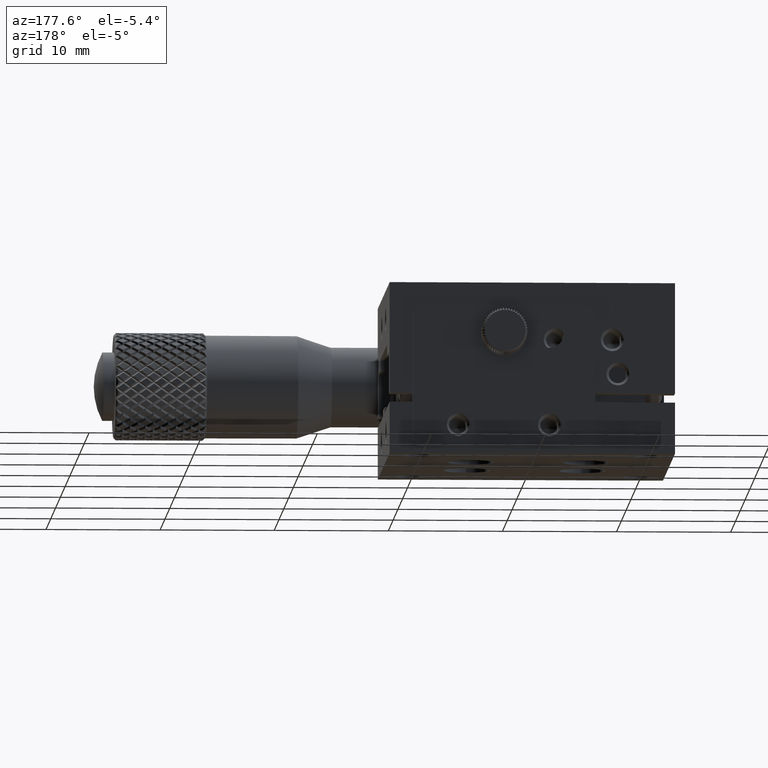
[diagram: clean part render]
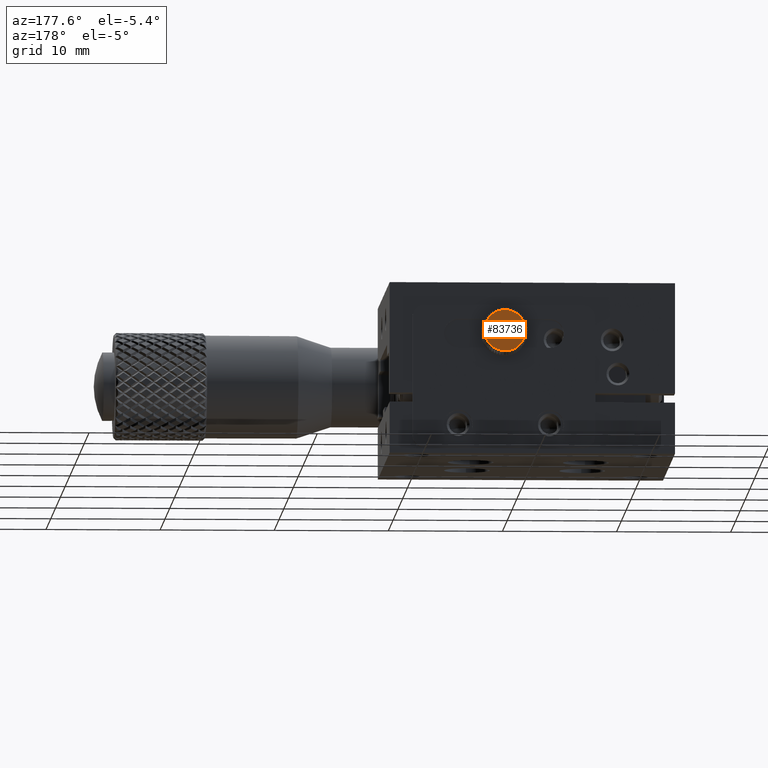
[diagram: same view with one face highlighted and labeled with its STEP entity id]
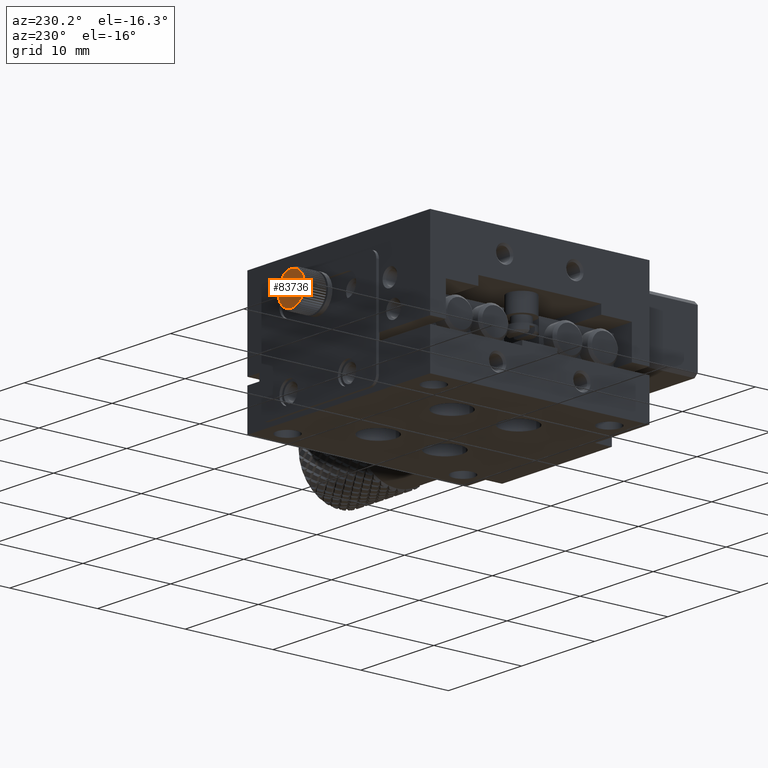
[diagram: same view with one face highlighted and labeled with its STEP entity id]
A machine part, auxiliary view. The second image highlights one B-rep face of the part: STEP entity #83736.
A second angle (auxiliary view) of the same face is appended — the face is thin or edge-on in the first view.
In plain terms, the highlighted planar face has unit normal (0, -1, 0).
Its self-contained STEP definition (entity closure, byte-faithful):
#442 = EDGE_CURVE ( 'NONE', #6730, #43148, #26499, .T. ) ;
#566 = CARTESIAN_POINT ( 'NONE',  ( 4.324138111140314322, 15.80000000000000071, 10.61302293515085893 ) ) ;
#810 = AXIS2_PLACEMENT_3D ( 'NONE', #1573, #66263, #30388 ) ;
#1055 = CARTESIAN_POINT ( 'NONE',  ( 4.295807051281545164, 15.80000000000000071, 10.83728636624858233 ) ) ;
#1087 = ORIENTED_EDGE ( 'NONE', *, *, #35388, .F. ) ;
#1355 = ORIENTED_EDGE ( 'NONE', *, *, #35500, .F. ) ;
#1573 = CARTESIAN_POINT ( 'NONE',  ( 2.527690000000000659, 15.79999999996744009, 10.49999999999999822 ) ) ;
#1682 = PLANE ( 'NONE',  #4571 ) ;
#1814 = AXIS2_PLACEMENT_3D ( 'NONE', #38306, #67074, #2387 ) ;
#2387 = DIRECTION ( 'NONE',  ( -1.000000000000000000, 0.000000000000000000, 0.000000000000000000 ) ) ;
#2611 = DIRECTION ( 'NONE',  ( -1.000000000000000000, 0.000000000000000000, 0.000000000000000000 ) ) ;
#2615 = CARTESIAN_POINT ( 'NONE',  ( 2.527690000000000659, 15.79999999996744009, 10.49999999999999822 ) ) ;
#2675 = EDGE_CURVE ( 'NONE', #31469, #46198, #42476, .T. ) ;
#3097 = AXIS2_PLACEMENT_3D ( 'NONE', #67372, #66922, #65524 ) ;
#3815 = CIRCLE ( 'NONE', #53558, 1.799999999969366105 ) ;
#3827 = AXIS2_PLACEMENT_3D ( 'NONE', #8591, #29819, #72772 ) ;
#4057 = CARTESIAN_POINT ( 'NONE',  ( 2.527690000000000659, 15.79999999996744009, 10.49999999999999822 ) ) ;
#4221 = DIRECTION ( 'NONE',  ( 0.000000000000000000, -1.000000000000000000, 0.000000000000000000 ) ) ;
#4408 = EDGE_CURVE ( 'NONE', #87522, #68984, #71162, .T. ) ;
#4524 = CIRCLE ( 'NONE', #40674, 1.799999999969366105 ) ;
#4571 = AXIS2_PLACEMENT_3D ( 'NONE', #51275, #30499, #59744 ) ;
#4771 = DIRECTION ( 'NONE',  ( -1.000000000000000000, 0.000000000000000000, 0.000000000000000000 ) ) ;
#4784 = DIRECTION ( 'NONE',  ( 0.000000000000000000, -1.000000000000000000, 0.000000000000000000 ) ) ;
#4812 = CARTESIAN_POINT ( 'NONE',  ( 4.295807051281552269, 15.80000000000000071, 10.16271363375145320 ) ) ;
#5557 = DIRECTION ( 'NONE',  ( -1.000000000000000000, 0.000000000000000000, 0.000000000000000000 ) ) ;
#6017 = CIRCLE ( 'NONE', #79911, 1.799999999969366105 ) ;
#6330 = AXIS2_PLACEMENT_3D ( 'NONE', #67523, #51985, #65686 ) ;
#6730 = VERTEX_POINT ( 'NONE', #85150 ) ;
#7063 = CARTESIAN_POINT ( 'NONE',  ( 3.394846613368343036, 15.80000000000000071, 8.922647975947896271 ) ) ;
#7100 = CARTESIAN_POINT ( 'NONE',  ( 2.527690000000000659, 15.79999999996744009, 10.49999999999999822 ) ) ;
#7373 = CARTESIAN_POINT ( 'NONE',  ( 0.7595729487184510464, 15.80000000000000071, 10.83728636624855746 ) ) ;
#7750 = DIRECTION ( 'NONE',  ( -1.000000000000000000, 0.000000000000000000, 0.000000000000000000 ) ) ;
#7848 = DIRECTION ( 'NONE',  ( 0.000000000000000000, -1.000000000000000000, 0.000000000000000000 ) ) ;
#7912 = EDGE_CURVE ( 'NONE', #11252, #92709, #36679, .T. ) ;
#8264 = DIRECTION ( 'NONE',  ( 0.000000000000000000, -1.000000000000000000, 0.000000000000000000 ) ) ;
#8289 = VERTEX_POINT ( 'NONE', #87975 ) ;
#8505 = AXIS2_PLACEMENT_3D ( 'NONE', #70923, #55844, #54918 ) ;
#8591 = CARTESIAN_POINT ( 'NONE',  ( 2.527690000000000659, 15.79999999996744009, 10.49999999999999822 ) ) ;
#8686 = EDGE_CURVE ( 'NONE', #72653, #31469, #17084, .T. ) ;
#8861 = ORIENTED_EDGE ( 'NONE', *, *, #37677, .F. ) ;
#8885 = AXIS2_PLACEMENT_3D ( 'NONE', #4057, #27187, #21051 ) ;
#8968 = ORIENTED_EDGE ( 'NONE', *, *, #17415, .F. ) ;
#9057 = CARTESIAN_POINT ( 'NONE',  ( 2.527690000000000659, 15.79999999996744009, 10.49999999999999822 ) ) ;
#9376 = CARTESIAN_POINT ( 'NONE',  ( 2.527690000000000659, 15.79999999996744009, 10.49999999999999822 ) ) ;
#9404 = EDGE_CURVE ( 'NONE', #20054, #44593, #45785, .T. ) ;
#9475 = DIRECTION ( 'NONE',  ( 0.000000000000000000, -1.000000000000000000, 0.000000000000000000 ) ) ;
#9642 = VERTEX_POINT ( 'NONE', #85440 ) ;
#9932 = CARTESIAN_POINT ( 'NONE',  ( 1.140766163027188584, 15.80000000000000071, 9.352636818471877334 ) ) ;
#10581 = CIRCLE ( 'NONE', #85897, 1.799999999969366105 ) ;
#10664 = VERTEX_POINT ( 'NONE', #9932 ) ;
#10976 = DIRECTION ( 'NONE',  ( 0.000000000000000000, -1.000000000000000000, 0.000000000000000000 ) ) ;
#11252 = VERTEX_POINT ( 'NONE', #33144 ) ;
#11261 = DIRECTION ( 'NONE',  ( 0.000000000000000000, -1.000000000000000000, 0.000000000000000000 ) ) ;
#11893 = VERTEX_POINT ( 'NONE', #21112 ) ;
#12218 = DIRECTION ( 'NONE',  ( -1.000000000000000000, 0.000000000000000000, 0.000000000000000000 ) ) ;
#12308 = VERTEX_POINT ( 'NONE', #39244 ) ;
#12545 = AXIS2_PLACEMENT_3D ( 'NONE', #64626, #50464, #72175 ) ;
#12773 = EDGE_CURVE ( 'NONE', #79172, #8289, #33822, .T. ) ;
#12795 = CARTESIAN_POINT ( 'NONE',  ( 1.007899734122243540, 15.80000000000000071, 9.535511769054211939 ) ) ;
#12861 = CARTESIAN_POINT ( 'NONE',  ( 1.295505209349338882, 15.80000000000000071, 9.187856470663783526 ) ) ;
#12882 = CARTESIAN_POINT ( 'NONE',  ( 2.527690000000000659, 15.79999999996744009, 10.49999999999999822 ) ) ;
#13393 = CARTESIAN_POINT ( 'NONE',  ( 2.527690000000000659, 15.79999999996744009, 10.49999999999999822 ) ) ;
#13454 = AXIS2_PLACEMENT_3D ( 'NONE', #12882, #40741, #91622 ) ;
#13511 = CIRCLE ( 'NONE', #73841, 1.799999999969366105 ) ;
#13869 = CARTESIAN_POINT ( 'NONE',  ( 2.527690000000000659, 15.79999999996744009, 10.49999999999999822 ) ) ;
#13872 = CARTESIAN_POINT ( 'NONE',  ( 2.527690000000000659, 15.79999999996744009, 10.49999999999999822 ) ) ;
#14094 = AXIS2_PLACEMENT_3D ( 'NONE', #58674, #81304, #29408 ) ;
#14358 = EDGE_CURVE ( 'NONE', #49681, #18912, #91032, .T. ) ;
#14466 = DIRECTION ( 'NONE',  ( -1.000000000000000000, 0.000000000000000000, 0.000000000000000000 ) ) ;
#14625 = EDGE_CURVE ( 'NONE', #92709, #6730, #39972, .T. ) ;
#14697 = CARTESIAN_POINT ( 'NONE',  ( 2.527690000000000659, 15.79999999996744009, 10.49999999999999822 ) ) ;
#14733 = DIRECTION ( 'NONE',  ( -1.000000000000000000, 0.000000000000000000, 0.000000000000000000 ) ) ;
#15202 = CIRCLE ( 'NONE', #3097, 1.799999999969366105 ) ;
#15381 = EDGE_CURVE ( 'NONE', #90903, #45282, #58041, .T. ) ;
#15390 = EDGE_CURVE ( 'NONE', #72544, #11893, #50466, .T. ) ;
#15821 = AXIS2_PLACEMENT_3D ( 'NONE', #45610, #67303, #2611 ) ;
#15999 = DIRECTION ( 'NONE',  ( -1.000000000000000000, 0.000000000000000000, 0.000000000000000000 ) ) ;
#16021 = DIRECTION ( 'NONE',  ( 0.000000000000000000, -1.000000000000000000, 0.000000000000000000 ) ) ;
#16387 = CIRCLE ( 'NONE', #69091, 1.799999999969366105 ) ;
#16584 = EDGE_CURVE ( 'NONE', #45282, #9642, #3815, .T. ) ;
#16610 = DIRECTION ( 'NONE',  ( -1.000000000000000000, 0.000000000000000000, 0.000000000000000000 ) ) ;
#16910 = DIRECTION ( 'NONE',  ( 0.000000000000000000, -1.000000000000000000, 0.000000000000000000 ) ) ;
#17084 = CIRCLE ( 'NONE', #69796, 1.799999999969366105 ) ;
#17121 = EDGE_CURVE ( 'NONE', #45539, #52363, #62609, .T. ) ;
#17280 = AXIS2_PLACEMENT_3D ( 'NONE', #13872, #71908, #64361 ) ;
#17415 = EDGE_CURVE ( 'NONE', #85958, #39269, #49058, .T. ) ;
#17909 = CARTESIAN_POINT ( 'NONE',  ( 1.140766163027183477, 15.80000000000000071, 11.64736318152811023 ) ) ;
#18034 = AXIS2_PLACEMENT_3D ( 'NONE', #90310, #62975, #77123 ) ;
#18912 = VERTEX_POINT ( 'NONE', #39883 ) ;
#19151 = CARTESIAN_POINT ( 'NONE',  ( 4.239591729302147449, 15.80000000000000071, 9.943769410134574827 ) ) ;
#19529 = CARTESIAN_POINT ( 'NONE',  ( 1.865065805178855785, 15.80000000000000071, 12.17359767457037023 ) ) ;
#19825 = AXIS2_PLACEMENT_3D ( 'NONE', #57424, #7848, #14466 ) ;
#20020 = DIRECTION ( 'NONE',  ( 0.000000000000000000, -1.000000000000000000, 0.000000000000000000 ) ) ;
#20054 = VERTEX_POINT ( 'NONE', #45486 ) ;
#20158 = CARTESIAN_POINT ( 'NONE',  ( 2.753289820411921607, 15.80000000000000071, 8.714193537664330691 ) ) ;
#20215 = DIRECTION ( 'NONE',  ( 0.000000000000000000, -1.000000000000000000, 0.000000000000000000 ) ) ;
#20445 = VERTEX_POINT ( 'NONE', #26296 ) ;
#20769 = CARTESIAN_POINT ( 'NONE',  ( 2.527690000000000659, 15.79999999996744009, 10.49999999999999822 ) ) ;
#21051 = DIRECTION ( 'NONE',  ( -1.000000000000000000, 0.000000000000000000, 0.000000000000000000 ) ) ;
#21112 = CARTESIAN_POINT ( 'NONE',  ( 4.047480265877771544, 15.80000000000000071, 9.535511769054233255 ) ) ;
#21764 = EDGE_CURVE ( 'NONE', #9642, #20054, #71624, .T. ) ;
#21819 = CARTESIAN_POINT ( 'NONE',  ( 2.527690000000000659, 15.79999999996744009, 10.49999999999999822 ) ) ;
#21903 = DIRECTION ( 'NONE',  ( -1.000000000000000000, 0.000000000000000000, 0.000000000000000000 ) ) ;
#22206 = DIRECTION ( 'NONE',  ( -1.000000000000000000, 0.000000000000000000, 0.000000000000000000 ) ) ;
#22221 = ORIENTED_EDGE ( 'NONE', *, *, #90113, .F. ) ;
#22502 = CIRCLE ( 'NONE', #91925, 1.799999999969366105 ) ;
#23372 = VERTEX_POINT ( 'NONE', #64766 ) ;
#23388 = AXIS2_PLACEMENT_3D ( 'NONE', #46235, #11261, #82094 ) ;
#23900 = DIRECTION ( 'NONE',  ( -1.000000000000000000, 0.000000000000000000, 0.000000000000000000 ) ) ;
#24088 = DIRECTION ( 'NONE',  ( 0.000000000000000000, -1.000000000000000000, 0.000000000000000000 ) ) ;
#24106 = CARTESIAN_POINT ( 'NONE',  ( 2.527690000000000659, 15.79999999996744009, 10.49999999999999822 ) ) ;
#24738 = AXIS2_PLACEMENT_3D ( 'NONE', #61921, #69445, #4771 ) ;
#24764 = AXIS2_PLACEMENT_3D ( 'NONE', #80816, #79404, #14733 ) ;
#24827 = CARTESIAN_POINT ( 'NONE',  ( 2.302090179588092145, 15.80000000000000071, 12.28580646233566753 ) ) ;
#24890 = VERTEX_POINT ( 'NONE', #40597 ) ;
#25042 = CIRCLE ( 'NONE', #77803, 1.799999999969366105 ) ;
#25981 = ORIENTED_EDGE ( 'NONE', *, *, #442, .F. ) ;
#26296 = CARTESIAN_POINT ( 'NONE',  ( 0.8157882706978629717, 15.80000000000000071, 9.943769410134553510 ) ) ;
#26365 = DIRECTION ( 'NONE',  ( -1.000000000000000000, 0.000000000000000000, 0.000000000000000000 ) ) ;
#26478 = ORIENTED_EDGE ( 'NONE', *, *, #73309, .F. ) ;
#26499 = CIRCLE ( 'NONE', #3827, 1.799999999969366105 ) ;
#26519 = CARTESIAN_POINT ( 'NONE',  ( 2.527690000000000659, 15.79999999996744009, 10.49999999999999822 ) ) ;
#26919 = CIRCLE ( 'NONE', #8885, 1.799999999969366105 ) ;
#27112 = AXIS2_PLACEMENT_3D ( 'NONE', #2615, #68684, #23900 ) ;
#27124 = AXIS2_PLACEMENT_3D ( 'NONE', #92077, #91603, #69489 ) ;
#27187 = DIRECTION ( 'NONE',  ( 0.000000000000000000, -1.000000000000000000, 0.000000000000000000 ) ) ;
#27229 = CARTESIAN_POINT ( 'NONE',  ( 3.759874790650654219, 15.80000000000000071, 11.81214352933622536 ) ) ;
#27364 = AXIS2_PLACEMENT_3D ( 'NONE', #24106, #9475, #38284 ) ;
#27427 = CIRCLE ( 'NONE', #1814, 1.799999999969366105 ) ;
#27430 = AXIS2_PLACEMENT_3D ( 'NONE', #85313, #49458, #78250 ) ;
#27749 = EDGE_CURVE ( 'NONE', #39269, #72544, #79575, .T. ) ;
#27905 = CARTESIAN_POINT ( 'NONE',  ( 2.527690000000000659, 15.79999999996744009, 10.49999999999999822 ) ) ;
#28065 = CARTESIAN_POINT ( 'NONE',  ( 2.080048203110891780, 15.80000000000000071, 8.756550309998129222 ) ) ;
#28083 = AXIS2_PLACEMENT_3D ( 'NONE', #20769, #71715, #58507 ) ;
#28088 = ORIENTED_EDGE ( 'NONE', *, *, #15390, .F. ) ;
#28093 = CARTESIAN_POINT ( 'NONE',  ( 2.527690000000000659, 15.80000000000000071, 12.29999999996936566 ) ) ;
#28119 = CARTESIAN_POINT ( 'NONE',  ( 2.753289820411884303, 15.80000000000000071, 12.28580646233566931 ) ) ;
#28537 = CIRCLE ( 'NONE', #18034, 1.799999999969366105 ) ;
#29108 = ORIENTED_EDGE ( 'NONE', *, *, #43804, .F. ) ;
#29403 = AXIS2_PLACEMENT_3D ( 'NONE', #73823, #88854, #7750 ) ;
#29408 = DIRECTION ( 'NONE',  ( -1.000000000000000000, 0.000000000000000000, 0.000000000000000000 ) ) ;
#29700 = ORIENTED_EDGE ( 'NONE', *, *, #17121, .F. ) ;
#29819 = DIRECTION ( 'NONE',  ( 0.000000000000000000, -1.000000000000000000, 0.000000000000000000 ) ) ;
#29828 = CARTESIAN_POINT ( 'NONE',  ( 1.660533386631680264, 15.80000000000000071, 8.922647975947883836 ) ) ;
#30095 = CARTESIAN_POINT ( 'NONE',  ( 0.8157882706978560883, 15.80000000000000071, 11.05623058986543228 ) ) ;
#30176 = CIRCLE ( 'NONE', #27124, 1.799999999969366105 ) ;
#30388 = DIRECTION ( 'NONE',  ( -1.000000000000000000, 0.000000000000000000, 0.000000000000000000 ) ) ;
#30499 = DIRECTION ( 'NONE',  ( 0.000000000000000000, -1.000000000000000000, 0.000000000000000000 ) ) ;
#31469 = VERTEX_POINT ( 'NONE', #49501 ) ;
#31479 = EDGE_CURVE ( 'NONE', #54224, #41450, #16387, .T. ) ;
#31692 = CARTESIAN_POINT ( 'NONE',  ( 3.394846613368309285, 15.80000000000000071, 12.07735202405212149 ) ) ;
#31785 = EDGE_CURVE ( 'NONE', #45543, #68278, #39068, .T. ) ;
#32161 = VERTEX_POINT ( 'NONE', #24827 ) ;
#32514 = DIRECTION ( 'NONE',  ( 0.000000000000000000, -1.000000000000000000, 0.000000000000000000 ) ) ;
#32772 = CARTESIAN_POINT ( 'NONE',  ( 1.007899734122234880, 15.80000000000000071, 11.46448823094577563 ) ) ;
#33144 = CARTESIAN_POINT ( 'NONE',  ( 2.080048203110879346, 15.80000000000000071, 12.24344969000186367 ) ) ;
#33822 = CIRCLE ( 'NONE', #17280, 1.799999999969366105 ) ;
#34722 = ORIENTED_EDGE ( 'NONE', *, *, #70010, .F. ) ;
#34746 = AXIS2_PLACEMENT_3D ( 'NONE', #36857, #78862, #51008 ) ;
#35193 = CIRCLE ( 'NONE', #12545, 1.799999999969366105 ) ;
#35322 = VERTEX_POINT ( 'NONE', #12861 ) ;
#35388 = EDGE_CURVE ( 'NONE', #39270, #38902, #4524, .T. ) ;
#35396 = EDGE_CURVE ( 'NONE', #11893, #52806, #30176, .T. ) ;
#35500 = EDGE_CURVE ( 'NONE', #24890, #49681, #6017, .T. ) ;
#35779 = DIRECTION ( 'NONE',  ( 0.000000000000000000, -1.000000000000000000, 0.000000000000000000 ) ) ;
#36439 = DIRECTION ( 'NONE',  ( -1.000000000000000000, 0.000000000000000000, 0.000000000000000000 ) ) ;
#36679 = CIRCLE ( 'NONE', #50208, 1.799999999969366105 ) ;
#36857 = CARTESIAN_POINT ( 'NONE',  ( 2.527690000000000659, 15.79999999996744009, 10.49999999999999822 ) ) ;
#36869 = CARTESIAN_POINT ( 'NONE',  ( 2.527690000000000659, 15.79999999996744009, 10.49999999999999822 ) ) ;
#37300 = CARTESIAN_POINT ( 'NONE',  ( 2.527690000000000659, 15.79999999996744009, 10.49999999999999822 ) ) ;
#37326 = DIRECTION ( 'NONE',  ( -1.000000000000000000, 0.000000000000000000, 0.000000000000000000 ) ) ;
#37327 = EDGE_CURVE ( 'NONE', #10664, #35322, #58908, .T. ) ;
#37355 = EDGE_CURVE ( 'NONE', #77530, #84965, #84424, .T. ) ;
#37677 = EDGE_CURVE ( 'NONE', #8289, #90903, #22502, .T. ) ;
#38182 = DIRECTION ( 'NONE',  ( -1.000000000000000000, 0.000000000000000000, 0.000000000000000000 ) ) ;
#38284 = DIRECTION ( 'NONE',  ( -1.000000000000000000, 0.000000000000000000, 0.000000000000000000 ) ) ;
#38306 = CARTESIAN_POINT ( 'NONE',  ( 2.527690000000000659, 15.79999999996744009, 10.49999999999999822 ) ) ;
#38600 = ORIENTED_EDGE ( 'NONE', *, *, #44987, .F. ) ;
#38711 = EDGE_CURVE ( 'NONE', #18912, #72653, #28537, .T. ) ;
#38881 = AXIS2_PLACEMENT_3D ( 'NONE', #83401, #47559, #77737 ) ;
#38902 = VERTEX_POINT ( 'NONE', #80292 ) ;
#39068 = CIRCLE ( 'NONE', #79773, 1.799999999969366105 ) ;
#39158 = CARTESIAN_POINT ( 'NONE',  ( 0.8990013055888822491, 15.80000000000000071, 11.26640272480408278 ) ) ;
#39244 = CARTESIAN_POINT ( 'NONE',  ( 2.302090179588104579, 15.80000000000000071, 8.714193537664332467 ) ) ;
#39269 = VERTEX_POINT ( 'NONE', #91808 ) ;
#39270 = VERTEX_POINT ( 'NONE', #20158 ) ;
#39287 = AXIS2_PLACEMENT_3D ( 'NONE', #7100, #58097, #37326 ) ;
#39767 = CIRCLE ( 'NONE', #24738, 1.799999999969366105 ) ;
#39805 = CARTESIAN_POINT ( 'NONE',  ( 2.527690000000000659, 15.79999999996744009, 10.49999999999999822 ) ) ;
#39883 = CARTESIAN_POINT ( 'NONE',  ( 3.585703454108426946, 15.80000000000000071, 11.95623058985013465 ) ) ;
#39972 = CIRCLE ( 'NONE', #29403, 1.799999999969366105 ) ;
#40249 = DIRECTION ( 'NONE',  ( -1.000000000000000000, 0.000000000000000000, 0.000000000000000000 ) ) ;
#40597 = CARTESIAN_POINT ( 'NONE',  ( 3.914613836972804517, 15.80000000000000071, 11.64736318152812977 ) ) ;
#40605 = ORIENTED_EDGE ( 'NONE', *, *, #12773, .F. ) ;
#40674 = AXIS2_PLACEMENT_3D ( 'NONE', #39805, #10976, #40249 ) ;
#40741 = DIRECTION ( 'NONE',  ( 0.000000000000000000, -1.000000000000000000, 0.000000000000000000 ) ) ;
#41450 = VERTEX_POINT ( 'NONE', #29828 ) ;
#41466 = AXIS2_PLACEMENT_3D ( 'NONE', #13869, #56831, #86500 ) ;
#41823 = CARTESIAN_POINT ( 'NONE',  ( 4.047480265877751116, 15.80000000000000071, 11.46448823094579517 ) ) ;
#42033 = AXIS2_PLACEMENT_3D ( 'NONE', #42414, #56588, #12218 ) ;
#42058 = ORIENTED_EDGE ( 'NONE', *, *, #2675, .F. ) ;
#42113 = EDGE_CURVE ( 'NONE', #52363, #87522, #90400, .T. ) ;
#42414 = CARTESIAN_POINT ( 'NONE',  ( 2.527690000000000659, 15.79999999996744009, 10.49999999999999822 ) ) ;
#42449 = CARTESIAN_POINT ( 'NONE',  ( 2.527690000000000659, 15.79999999996744009, 10.49999999999999822 ) ) ;
#42476 = CIRCLE ( 'NONE', #80219, 1.799999999969366105 ) ;
#43148 = VERTEX_POINT ( 'NONE', #46301 ) ;
#43236 = CARTESIAN_POINT ( 'NONE',  ( 0.7312418888596859956, 15.80000000000000071, 10.38697706484915173 ) ) ;
#43310 = EDGE_CURVE ( 'NONE', #32161, #11252, #55237, .T. ) ;
#43334 = DIRECTION ( 'NONE',  ( 0.000000000000000000, -1.000000000000000000, 0.000000000000000000 ) ) ;
#43486 = DIRECTION ( 'NONE',  ( -1.000000000000000000, 0.000000000000000000, 0.000000000000000000 ) ) ;
#43753 = EDGE_CURVE ( 'NONE', #23372, #45539, #25042, .T. ) ;
#43786 = CIRCLE ( 'NONE', #45331, 1.799999999969366105 ) ;
#43804 = EDGE_CURVE ( 'NONE', #46198, #58249, #76307, .T. ) ;
#44096 = ORIENTED_EDGE ( 'NONE', *, *, #85949, .F. ) ;
#44593 = VERTEX_POINT ( 'NONE', #41823 ) ;
#44614 = CARTESIAN_POINT ( 'NONE',  ( 2.527690000000000659, 15.79999999996744009, 10.49999999999999822 ) ) ;
#44987 = EDGE_CURVE ( 'NONE', #68278, #85958, #69404, .T. ) ;
#45282 = VERTEX_POINT ( 'NONE', #1055 ) ;
#45331 = AXIS2_PLACEMENT_3D ( 'NONE', #26519, #4784, #76544 ) ;
#45486 = CARTESIAN_POINT ( 'NONE',  ( 4.156378694411109187, 15.80000000000000071, 11.26640272480410587 ) ) ;
#45539 = VERTEX_POINT ( 'NONE', #17909 ) ;
#45543 = VERTEX_POINT ( 'NONE', #61789 ) ;
#45610 = CARTESIAN_POINT ( 'NONE',  ( 2.527690000000000659, 15.79999999996744009, 10.49999999999999822 ) ) ;
#45785 = CIRCLE ( 'NONE', #14094, 1.799999999969366105 ) ;
#46198 = VERTEX_POINT ( 'NONE', #62260 ) ;
#46235 = CARTESIAN_POINT ( 'NONE',  ( 2.527690000000000659, 15.79999999996744009, 10.49999999999999822 ) ) ;
#46301 = CARTESIAN_POINT ( 'NONE',  ( 1.469676545891552832, 15.80000000000000071, 11.95623058985012044 ) ) ;
#46342 = ORIENTED_EDGE ( 'NONE', *, *, #43753, .F. ) ;
#46528 = EDGE_CURVE ( 'NONE', #58249, #80492, #15202, .T. ) ;
#46597 = CIRCLE ( 'NONE', #13454, 1.799999999969366105 ) ;
#47559 = DIRECTION ( 'NONE',  ( 0.000000000000000000, -1.000000000000000000, 0.000000000000000000 ) ) ;
#48191 = ORIENTED_EDGE ( 'NONE', *, *, #93289, .F. ) ;
#48407 = ORIENTED_EDGE ( 'NONE', *, *, #35396, .F. ) ;
#48585 = AXIS2_PLACEMENT_3D ( 'NONE', #21819, #57213, #36439 ) ;
#48668 = ORIENTED_EDGE ( 'NONE', *, *, #37355, .F. ) ;
#49058 = CIRCLE ( 'NONE', #50536, 1.799999999969366105 ) ;
#49219 = CARTESIAN_POINT ( 'NONE',  ( 3.914613836972828498, 15.80000000000000071, 9.352636818471898650 ) ) ;
#49371 = EDGE_CURVE ( 'NONE', #41450, #54671, #81682, .T. ) ;
#49438 = DIRECTION ( 'NONE',  ( -1.000000000000000000, 0.000000000000000000, 0.000000000000000000 ) ) ;
#49458 = DIRECTION ( 'NONE',  ( 0.000000000000000000, -1.000000000000000000, 0.000000000000000000 ) ) ;
#49501 = CARTESIAN_POINT ( 'NONE',  ( 3.190314194821121774, 15.80000000000000071, 12.17359767457037911 ) ) ;
#49681 = VERTEX_POINT ( 'NONE', #27229 ) ;
#49689 = ORIENTED_EDGE ( 'NONE', *, *, #31785, .F. ) ;
#50081 = DIRECTION ( 'NONE',  ( 0.000000000000000000, -1.000000000000000000, 0.000000000000000000 ) ) ;
#50208 = AXIS2_PLACEMENT_3D ( 'NONE', #71625, #20215, #49438 ) ;
#50418 = CARTESIAN_POINT ( 'NONE',  ( 4.156378694411124286, 15.80000000000000071, 9.733597275195927878 ) ) ;
#50444 = ORIENTED_EDGE ( 'NONE', *, *, #83022, .F. ) ;
#50464 = DIRECTION ( 'NONE',  ( 0.000000000000000000, -1.000000000000000000, 0.000000000000000000 ) ) ;
#50466 = CIRCLE ( 'NONE', #41466, 1.799999999969366105 ) ;
#50536 = AXIS2_PLACEMENT_3D ( 'NONE', #55228, #4221, #83988 ) ;
#50787 = AXIS2_PLACEMENT_3D ( 'NONE', #37300, #79304, #22206 ) ;
#51008 = DIRECTION ( 'NONE',  ( -1.000000000000000000, 0.000000000000000000, 0.000000000000000000 ) ) ;
#51115 = EDGE_CURVE ( 'NONE', #58621, #39270, #68135, .T. ) ;
#51275 = CARTESIAN_POINT ( 'NONE',  ( 4.327690000000000481, 15.80000000000000071, 10.49999999999999822 ) ) ;
#51580 = CIRCLE ( 'NONE', #6330, 1.799999999969366105 ) ;
#51985 = DIRECTION ( 'NONE',  ( 0.000000000000000000, -1.000000000000000000, 0.000000000000000000 ) ) ;
#52331 = VERTEX_POINT ( 'NONE', #43236 ) ;
#52363 = VERTEX_POINT ( 'NONE', #32772 ) ;
#52463 = DIRECTION ( 'NONE',  ( 0.000000000000000000, -1.000000000000000000, 0.000000000000000000 ) ) ;
#52761 = DIRECTION ( 'NONE',  ( -1.000000000000000000, 0.000000000000000000, 0.000000000000000000 ) ) ;
#52806 = VERTEX_POINT ( 'NONE', #50418 ) ;
#53558 = AXIS2_PLACEMENT_3D ( 'NONE', #14697, #77483, #43486 ) ;
#53705 = ORIENTED_EDGE ( 'NONE', *, *, #72494, .F. ) ;
#54224 = VERTEX_POINT ( 'NONE', #70991 ) ;
#54671 = VERTEX_POINT ( 'NONE', #88034 ) ;
#54688 = EDGE_CURVE ( 'NONE', #54671, #55591, #56003, .T. ) ;
#54918 = DIRECTION ( 'NONE',  ( -1.000000000000000000, 0.000000000000000000, 0.000000000000000000 ) ) ;
#55228 = CARTESIAN_POINT ( 'NONE',  ( 2.527690000000000659, 15.79999999996744009, 10.49999999999999822 ) ) ;
#55237 = CIRCLE ( 'NONE', #28083, 1.799999999969366105 ) ;
#55288 = EDGE_CURVE ( 'NONE', #52806, #79651, #27427, .T. ) ;
#55554 = CIRCLE ( 'NONE', #42033, 1.799999999969366105 ) ;
#55591 = VERTEX_POINT ( 'NONE', #28065 ) ;
#55844 = DIRECTION ( 'NONE',  ( 0.000000000000000000, -1.000000000000000000, 0.000000000000000000 ) ) ;
#56003 = CIRCLE ( 'NONE', #19825, 1.799999999969366105 ) ;
#56209 = EDGE_CURVE ( 'NONE', #43148, #23372, #51580, .T. ) ;
#56570 = CARTESIAN_POINT ( 'NONE',  ( 2.527690000000000659, 15.79999999996744009, 10.49999999999999822 ) ) ;
#56588 = DIRECTION ( 'NONE',  ( 0.000000000000000000, -1.000000000000000000, 0.000000000000000000 ) ) ;
#56770 = ORIENTED_EDGE ( 'NONE', *, *, #89925, .F. ) ;
#56831 = DIRECTION ( 'NONE',  ( 0.000000000000000000, -1.000000000000000000, 0.000000000000000000 ) ) ;
#57213 = DIRECTION ( 'NONE',  ( 0.000000000000000000, -1.000000000000000000, 0.000000000000000000 ) ) ;
#57424 = CARTESIAN_POINT ( 'NONE',  ( 2.527690000000000659, 15.79999999996744009, 10.49999999999999822 ) ) ;
#57774 = CARTESIAN_POINT ( 'NONE',  ( 2.527690000000000659, 15.79999999996744009, 10.49999999999999822 ) ) ;
#57857 = ORIENTED_EDGE ( 'NONE', *, *, #87675, .F. ) ;
#57957 = ORIENTED_EDGE ( 'NONE', *, *, #27749, .F. ) ;
#58041 = CIRCLE ( 'NONE', #82126, 1.799999999969366105 ) ;
#58097 = DIRECTION ( 'NONE',  ( 0.000000000000000000, -1.000000000000000000, 0.000000000000000000 ) ) ;
#58212 = ORIENTED_EDGE ( 'NONE', *, *, #56209, .F. ) ;
#58249 = VERTEX_POINT ( 'NONE', #28119 ) ;
#58507 = DIRECTION ( 'NONE',  ( -1.000000000000000000, 0.000000000000000000, 0.000000000000000000 ) ) ;
#58529 = CARTESIAN_POINT ( 'NONE',  ( 3.585703454108459809, 15.80000000000000071, 9.043769410149884891 ) ) ;
#58621 = VERTEX_POINT ( 'NONE', #70021 ) ;
#58674 = CARTESIAN_POINT ( 'NONE',  ( 2.527690000000000659, 15.79999999996744009, 10.49999999999999822 ) ) ;
#58908 = CIRCLE ( 'NONE', #39287, 1.799999999969366105 ) ;
#59744 = DIRECTION ( 'NONE',  ( -1.000000000000000000, 0.000000000000000000, 0.000000000000000000 ) ) ;
#59863 = ORIENTED_EDGE ( 'NONE', *, *, #4408, .F. ) ;
#59922 = CARTESIAN_POINT ( 'NONE',  ( 2.527690000000000659, 15.79999999996744009, 10.49999999999999822 ) ) ;
#61321 = DIRECTION ( 'NONE',  ( -1.000000000000000000, 0.000000000000000000, 0.000000000000000000 ) ) ;
#61500 = DIRECTION ( 'NONE',  ( -1.000000000000000000, 0.000000000000000000, 0.000000000000000000 ) ) ;
#61624 = EDGE_CURVE ( 'NONE', #68984, #77530, #35193, .T. ) ;
#61627 = CARTESIAN_POINT ( 'NONE',  ( 0.7595729487184562645, 15.80000000000000071, 10.16271363375142833 ) ) ;
#61789 = CARTESIAN_POINT ( 'NONE',  ( 3.190314194821157301, 15.80000000000000071, 8.826402325429635098 ) ) ;
#61921 = CARTESIAN_POINT ( 'NONE',  ( 2.527690000000000659, 15.79999999996744009, 10.49999999999999822 ) ) ;
#61965 = CARTESIAN_POINT ( 'NONE',  ( 2.527690000000000659, 15.79999999996744009, 10.49999999999999822 ) ) ;
#62260 = CARTESIAN_POINT ( 'NONE',  ( 2.975331796889096658, 15.80000000000000071, 12.24344969000186900 ) ) ;
#62609 = CIRCLE ( 'NONE', #810, 1.799999999969366105 ) ;
#62931 = VERTEX_POINT ( 'NONE', #90381 ) ;
#62975 = DIRECTION ( 'NONE',  ( 0.000000000000000000, -1.000000000000000000, 0.000000000000000000 ) ) ;
#63062 = ORIENTED_EDGE ( 'NONE', *, *, #16584, .F. ) ;
#63685 = DIRECTION ( 'NONE',  ( 0.000000000000000000, -1.000000000000000000, 0.000000000000000000 ) ) ;
#63880 = EDGE_CURVE ( 'NONE', #52331, #79644, #39767, .T. ) ;
#64322 = ORIENTED_EDGE ( 'NONE', *, *, #9404, .F. ) ;
#64361 = DIRECTION ( 'NONE',  ( -1.000000000000000000, 0.000000000000000000, 0.000000000000000000 ) ) ;
#64626 = CARTESIAN_POINT ( 'NONE',  ( 2.527690000000000659, 15.79999999996744009, 10.49999999999999822 ) ) ;
#64766 = CARTESIAN_POINT ( 'NONE',  ( 1.295505209349330222, 15.80000000000000071, 11.81214352933620582 ) ) ;
#65524 = DIRECTION ( 'NONE',  ( -1.000000000000000000, 0.000000000000000000, 0.000000000000000000 ) ) ;
#65658 = DIRECTION ( 'NONE',  ( -1.000000000000000000, 0.000000000000000000, 0.000000000000000000 ) ) ;
#65686 = DIRECTION ( 'NONE',  ( -1.000000000000000000, 0.000000000000000000, 0.000000000000000000 ) ) ;
#66017 = CARTESIAN_POINT ( 'NONE',  ( 2.527690000000000659, 15.79999999996744009, 10.49999999999999822 ) ) ;
#66263 = DIRECTION ( 'NONE',  ( 0.000000000000000000, -1.000000000000000000, 0.000000000000000000 ) ) ;
#66922 = DIRECTION ( 'NONE',  ( 0.000000000000000000, -1.000000000000000000, 0.000000000000000000 ) ) ;
#67074 = DIRECTION ( 'NONE',  ( 0.000000000000000000, -1.000000000000000000, 0.000000000000000000 ) ) ;
#67091 = ORIENTED_EDGE ( 'NONE', *, *, #14358, .F. ) ;
#67303 = DIRECTION ( 'NONE',  ( 0.000000000000000000, -1.000000000000000000, 0.000000000000000000 ) ) ;
#67372 = CARTESIAN_POINT ( 'NONE',  ( 2.527690000000000659, 15.79999999996744009, 10.49999999999999822 ) ) ;
#67523 = CARTESIAN_POINT ( 'NONE',  ( 2.527690000000000659, 15.79999999996744009, 10.49999999999999822 ) ) ;
#68135 = CIRCLE ( 'NONE', #27430, 1.799999999969366105 ) ;
#68278 = VERTEX_POINT ( 'NONE', #7063 ) ;
#68404 = CIRCLE ( 'NONE', #90990, 1.799999999969366105 ) ;
#68575 = ORIENTED_EDGE ( 'NONE', *, *, #61624, .F. ) ;
#68684 = DIRECTION ( 'NONE',  ( 0.000000000000000000, -1.000000000000000000, 0.000000000000000000 ) ) ;
#68984 = VERTEX_POINT ( 'NONE', #30095 ) ;
#69091 = AXIS2_PLACEMENT_3D ( 'NONE', #66017, #16910, #52761 ) ;
#69404 = CIRCLE ( 'NONE', #82936, 1.799999999969366105 ) ;
#69445 = DIRECTION ( 'NONE',  ( 0.000000000000000000, -1.000000000000000000, 0.000000000000000000 ) ) ;
#69489 = DIRECTION ( 'NONE',  ( -1.000000000000000000, 0.000000000000000000, 0.000000000000000000 ) ) ;
#69796 = AXIS2_PLACEMENT_3D ( 'NONE', #71168, #43334, #5557 ) ;
#70010 = EDGE_CURVE ( 'NONE', #20445, #62931, #26919, .T. ) ;
#70021 = CARTESIAN_POINT ( 'NONE',  ( 2.527690000000000659, 15.80000000000000071, 8.700000000030632563 ) ) ;
#70584 = EDGE_CURVE ( 'NONE', #55591, #12308, #55554, .T. ) ;
#70923 = CARTESIAN_POINT ( 'NONE',  ( 2.527690000000000659, 15.79999999996744009, 10.49999999999999822 ) ) ;
#70991 = CARTESIAN_POINT ( 'NONE',  ( 1.469676545891564157, 15.80000000000000071, 9.043769410149872456 ) ) ;
#71030 = ORIENTED_EDGE ( 'NONE', *, *, #7912, .F. ) ;
#71162 = CIRCLE ( 'NONE', #48585, 1.799999999969366105 ) ;
#71168 = CARTESIAN_POINT ( 'NONE',  ( 2.527690000000000659, 15.79999999996744009, 10.49999999999999822 ) ) ;
#71392 = AXIS2_PLACEMENT_3D ( 'NONE', #56570, #35779, #26365 ) ;
#71624 = CIRCLE ( 'NONE', #80750, 1.799999999969366105 ) ;
#71625 = CARTESIAN_POINT ( 'NONE',  ( 2.527690000000000659, 15.79999999996744009, 10.49999999999999822 ) ) ;
#71715 = DIRECTION ( 'NONE',  ( 0.000000000000000000, -1.000000000000000000, 0.000000000000000000 ) ) ;
#71873 = CIRCLE ( 'NONE', #50787, 1.799999999969366105 ) ;
#71908 = DIRECTION ( 'NONE',  ( 0.000000000000000000, -1.000000000000000000, 0.000000000000000000 ) ) ;
#72175 = DIRECTION ( 'NONE',  ( -1.000000000000000000, 0.000000000000000000, 0.000000000000000000 ) ) ;
#72494 = EDGE_CURVE ( 'NONE', #38902, #45543, #46597, .T. ) ;
#72544 = VERTEX_POINT ( 'NONE', #49219 ) ;
#72653 = VERTEX_POINT ( 'NONE', #31692 ) ;
#72772 = DIRECTION ( 'NONE',  ( -1.000000000000000000, 0.000000000000000000, 0.000000000000000000 ) ) ;
#73012 = ORIENTED_EDGE ( 'NONE', *, *, #70584, .F. ) ;
#73082 = CIRCLE ( 'NONE', #23388, 1.799999999969366105 ) ;
#73309 = EDGE_CURVE ( 'NONE', #12308, #58621, #13511, .T. ) ;
#73403 = ORIENTED_EDGE ( 'NONE', *, *, #76743, .F. ) ;
#73455 = FACE_OUTER_BOUND ( 'NONE', #75112, .T. ) ;
#73823 = CARTESIAN_POINT ( 'NONE',  ( 2.527690000000000659, 15.79999999996744009, 10.49999999999999822 ) ) ;
#73841 = AXIS2_PLACEMENT_3D ( 'NONE', #42449, #63685, #83517 ) ;
#74089 = ORIENTED_EDGE ( 'NONE', *, *, #49371, .F. ) ;
#75112 = EDGE_LOOP ( 'NONE', ( #57857, #83910, #29108, #42058, #86199, #84900, #67091, #1355, #73403, #64322, #86112, #63062, #86900, #8861, #40605, #56770, #80029, #48407, #28088, #57957, #8968, #38600, #49689, #53705, #1087, #90929, #26478, #73012, #75202, #74089, #77797, #44096, #91878, #87997, #50444, #34722, #48191, #88517, #22221, #48668, #68575, #59863, #88779, #29700, #46342, #58212, #25981, #80572, #71030, #93247 ) ) ;
#75202 = ORIENTED_EDGE ( 'NONE', *, *, #54688, .F. ) ;
#75337 = EDGE_CURVE ( 'NONE', #93143, #10664, #91867, .T. ) ;
#75953 = CIRCLE ( 'NONE', #24764, 1.799999999969366105 ) ;
#76307 = CIRCLE ( 'NONE', #8505, 1.799999999969366105 ) ;
#76544 = DIRECTION ( 'NONE',  ( -1.000000000000000000, 0.000000000000000000, 0.000000000000000000 ) ) ;
#76743 = EDGE_CURVE ( 'NONE', #44593, #24890, #43786, .T. ) ;
#77065 = DIRECTION ( 'NONE',  ( -1.000000000000000000, 0.000000000000000000, 0.000000000000000000 ) ) ;
#77123 = DIRECTION ( 'NONE',  ( -1.000000000000000000, 0.000000000000000000, 0.000000000000000000 ) ) ;
#77483 = DIRECTION ( 'NONE',  ( 0.000000000000000000, -1.000000000000000000, 0.000000000000000000 ) ) ;
#77530 = VERTEX_POINT ( 'NONE', #7373 ) ;
#77737 = DIRECTION ( 'NONE',  ( -1.000000000000000000, 0.000000000000000000, 0.000000000000000000 ) ) ;
#77797 = ORIENTED_EDGE ( 'NONE', *, *, #31479, .F. ) ;
#77803 = AXIS2_PLACEMENT_3D ( 'NONE', #88416, #92573, #77065 ) ;
#78250 = DIRECTION ( 'NONE',  ( -1.000000000000000000, 0.000000000000000000, 0.000000000000000000 ) ) ;
#78862 = DIRECTION ( 'NONE',  ( 0.000000000000000000, -1.000000000000000000, 0.000000000000000000 ) ) ;
#79172 = VERTEX_POINT ( 'NONE', #4812 ) ;
#79304 = DIRECTION ( 'NONE',  ( 0.000000000000000000, -1.000000000000000000, 0.000000000000000000 ) ) ;
#79404 = DIRECTION ( 'NONE',  ( 0.000000000000000000, -1.000000000000000000, 0.000000000000000000 ) ) ;
#79575 = CIRCLE ( 'NONE', #38881, 1.799999999969366105 ) ;
#79644 = VERTEX_POINT ( 'NONE', #61627 ) ;
#79651 = VERTEX_POINT ( 'NONE', #19151 ) ;
#79773 = AXIS2_PLACEMENT_3D ( 'NONE', #27905, #50081, #84537 ) ;
#79911 = AXIS2_PLACEMENT_3D ( 'NONE', #61965, #90693, #61500 ) ;
#80029 = ORIENTED_EDGE ( 'NONE', *, *, #55288, .F. ) ;
#80219 = AXIS2_PLACEMENT_3D ( 'NONE', #9376, #16021, #38182 ) ;
#80292 = CARTESIAN_POINT ( 'NONE',  ( 2.975331796889134406, 15.80000000000000071, 8.756550309998136328 ) ) ;
#80474 = DIRECTION ( 'NONE',  ( -1.000000000000000000, 0.000000000000000000, 0.000000000000000000 ) ) ;
#80492 = VERTEX_POINT ( 'NONE', #28093 ) ;
#80572 = ORIENTED_EDGE ( 'NONE', *, *, #14625, .F. ) ;
#80653 = DIRECTION ( 'NONE',  ( 0.000000000000000000, -1.000000000000000000, 0.000000000000000000 ) ) ;
#80750 = AXIS2_PLACEMENT_3D ( 'NONE', #36869, #24088, #65658 ) ;
#80816 = CARTESIAN_POINT ( 'NONE',  ( 2.527690000000000659, 15.79999999996744009, 10.49999999999999822 ) ) ;
#81304 = DIRECTION ( 'NONE',  ( 0.000000000000000000, -1.000000000000000000, 0.000000000000000000 ) ) ;
#81682 = CIRCLE ( 'NONE', #27364, 1.799999999969366105 ) ;
#82094 = DIRECTION ( 'NONE',  ( -1.000000000000000000, 0.000000000000000000, 0.000000000000000000 ) ) ;
#82126 = AXIS2_PLACEMENT_3D ( 'NONE', #57774, #85572, #21903 ) ;
#82936 = AXIS2_PLACEMENT_3D ( 'NONE', #59922, #32514, #61321 ) ;
#83022 = EDGE_CURVE ( 'NONE', #62931, #93143, #10581, .T. ) ;
#83401 = CARTESIAN_POINT ( 'NONE',  ( 2.527690000000000659, 15.79999999996744009, 10.49999999999999822 ) ) ;
#83517 = DIRECTION ( 'NONE',  ( -1.000000000000000000, 0.000000000000000000, 0.000000000000000000 ) ) ;
#83736 = ADVANCED_FACE ( 'NONE', ( #73455 ), #1682, .F. ) ;
#83910 = ORIENTED_EDGE ( 'NONE', *, *, #46528, .F. ) ;
#83988 = DIRECTION ( 'NONE',  ( -1.000000000000000000, 0.000000000000000000, 0.000000000000000000 ) ) ;
#84424 = CIRCLE ( 'NONE', #34746, 1.799999999969366105 ) ;
#84537 = DIRECTION ( 'NONE',  ( -1.000000000000000000, 0.000000000000000000, 0.000000000000000000 ) ) ;
#84899 = CIRCLE ( 'NONE', #71392, 1.799999999969366105 ) ;
#84900 = ORIENTED_EDGE ( 'NONE', *, *, #38711, .F. ) ;
#84965 = VERTEX_POINT ( 'NONE', #85501 ) ;
#85150 = CARTESIAN_POINT ( 'NONE',  ( 1.660533386631668495, 15.80000000000000071, 12.07735202405210728 ) ) ;
#85313 = CARTESIAN_POINT ( 'NONE',  ( 2.527690000000000659, 15.79999999996744009, 10.49999999999999822 ) ) ;
#85440 = CARTESIAN_POINT ( 'NONE',  ( 4.239591729302135015, 15.80000000000000071, 11.05623058986545715 ) ) ;
#85501 = CARTESIAN_POINT ( 'NONE',  ( 0.7312418888596843303, 15.80000000000000071, 10.61302293515083406 ) ) ;
#85572 = DIRECTION ( 'NONE',  ( 0.000000000000000000, -1.000000000000000000, 0.000000000000000000 ) ) ;
#85897 = AXIS2_PLACEMENT_3D ( 'NONE', #87201, #80653, #15999 ) ;
#85949 = EDGE_CURVE ( 'NONE', #35322, #54224, #71873, .T. ) ;
#85958 = VERTEX_POINT ( 'NONE', #58529 ) ;
#86112 = ORIENTED_EDGE ( 'NONE', *, *, #21764, .F. ) ;
#86199 = ORIENTED_EDGE ( 'NONE', *, *, #8686, .F. ) ;
#86500 = DIRECTION ( 'NONE',  ( -1.000000000000000000, 0.000000000000000000, 0.000000000000000000 ) ) ;
#86900 = ORIENTED_EDGE ( 'NONE', *, *, #15381, .F. ) ;
#87201 = CARTESIAN_POINT ( 'NONE',  ( 2.527690000000000659, 15.79999999996744009, 10.49999999999999822 ) ) ;
#87522 = VERTEX_POINT ( 'NONE', #39158 ) ;
#87675 = EDGE_CURVE ( 'NONE', #80492, #32161, #84899, .T. ) ;
#87975 = CARTESIAN_POINT ( 'NONE',  ( 4.324138111140316987, 15.80000000000000071, 10.38697706484917660 ) ) ;
#87997 = ORIENTED_EDGE ( 'NONE', *, *, #75337, .F. ) ;
#88034 = CARTESIAN_POINT ( 'NONE',  ( 1.865065805178867109, 15.80000000000000071, 8.826402325429624440 ) ) ;
#88416 = CARTESIAN_POINT ( 'NONE',  ( 2.527690000000000659, 15.79999999996744009, 10.49999999999999822 ) ) ;
#88517 = ORIENTED_EDGE ( 'NONE', *, *, #63880, .F. ) ;
#88779 = ORIENTED_EDGE ( 'NONE', *, *, #42113, .F. ) ;
#88854 = DIRECTION ( 'NONE',  ( 0.000000000000000000, -1.000000000000000000, 0.000000000000000000 ) ) ;
#89925 = EDGE_CURVE ( 'NONE', #79651, #79172, #75953, .T. ) ;
#90113 = EDGE_CURVE ( 'NONE', #84965, #52331, #68404, .T. ) ;
#90310 = CARTESIAN_POINT ( 'NONE',  ( 2.527690000000000659, 15.79999999996744009, 10.49999999999999822 ) ) ;
#90381 = CARTESIAN_POINT ( 'NONE',  ( 0.8990013055888892435, 15.80000000000000071, 9.733597275195904786 ) ) ;
#90400 = CIRCLE ( 'NONE', #91920, 1.799999999969366105 ) ;
#90693 = DIRECTION ( 'NONE',  ( 0.000000000000000000, -1.000000000000000000, 0.000000000000000000 ) ) ;
#90903 = VERTEX_POINT ( 'NONE', #566 ) ;
#90929 = ORIENTED_EDGE ( 'NONE', *, *, #51115, .F. ) ;
#90990 = AXIS2_PLACEMENT_3D ( 'NONE', #9057, #52463, #16610 ) ;
#91032 = CIRCLE ( 'NONE', #15821, 1.799999999969366105 ) ;
#91603 = DIRECTION ( 'NONE',  ( 0.000000000000000000, -1.000000000000000000, 0.000000000000000000 ) ) ;
#91622 = DIRECTION ( 'NONE',  ( -1.000000000000000000, 0.000000000000000000, 0.000000000000000000 ) ) ;
#91808 = CARTESIAN_POINT ( 'NONE',  ( 3.759874790650679977, 15.80000000000000071, 9.187856470663799513 ) ) ;
#91867 = CIRCLE ( 'NONE', #27112, 1.799999999969366105 ) ;
#91878 = ORIENTED_EDGE ( 'NONE', *, *, #37327, .F. ) ;
#91920 = AXIS2_PLACEMENT_3D ( 'NONE', #44614, #8264, #80474 ) ;
#91925 = AXIS2_PLACEMENT_3D ( 'NONE', #13393, #20020, #92614 ) ;
#92077 = CARTESIAN_POINT ( 'NONE',  ( 2.527690000000000659, 15.79999999996744009, 10.49999999999999822 ) ) ;
#92573 = DIRECTION ( 'NONE',  ( 0.000000000000000000, -1.000000000000000000, 0.000000000000000000 ) ) ;
#92614 = DIRECTION ( 'NONE',  ( -1.000000000000000000, 0.000000000000000000, 0.000000000000000000 ) ) ;
#92709 = VERTEX_POINT ( 'NONE', #19529 ) ;
#93143 = VERTEX_POINT ( 'NONE', #12795 ) ;
#93247 = ORIENTED_EDGE ( 'NONE', *, *, #43310, .F. ) ;
#93289 = EDGE_CURVE ( 'NONE', #79644, #20445, #73082, .T. ) ;